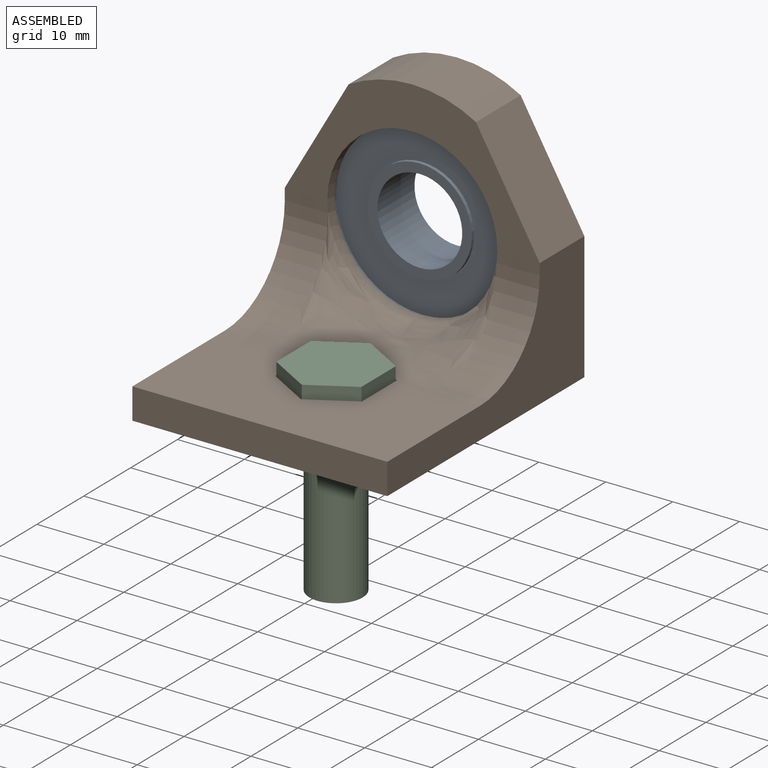
[diagram: assembled view]
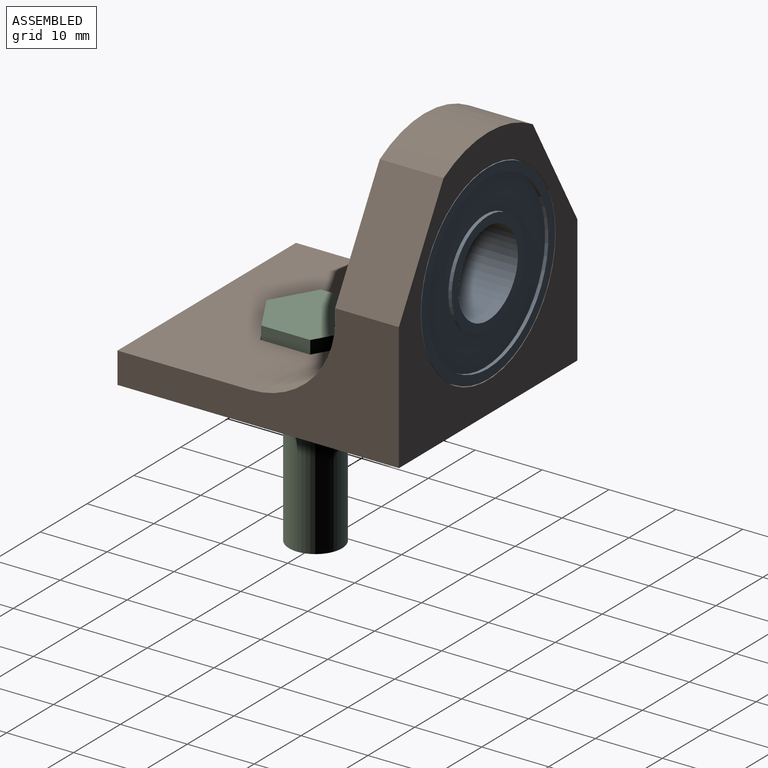
[diagram: assembled view, second angle]
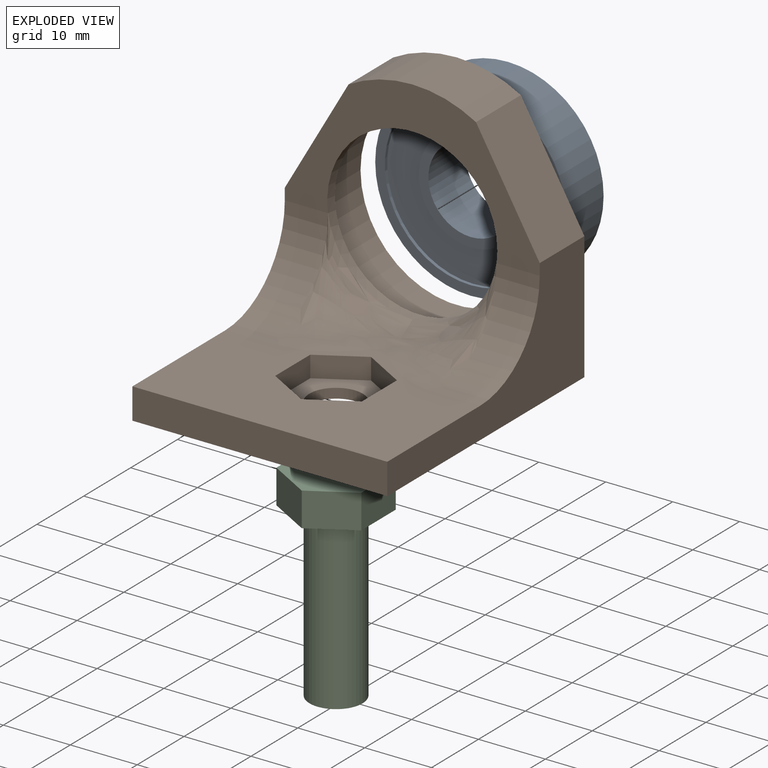
[diagram: exploded view]
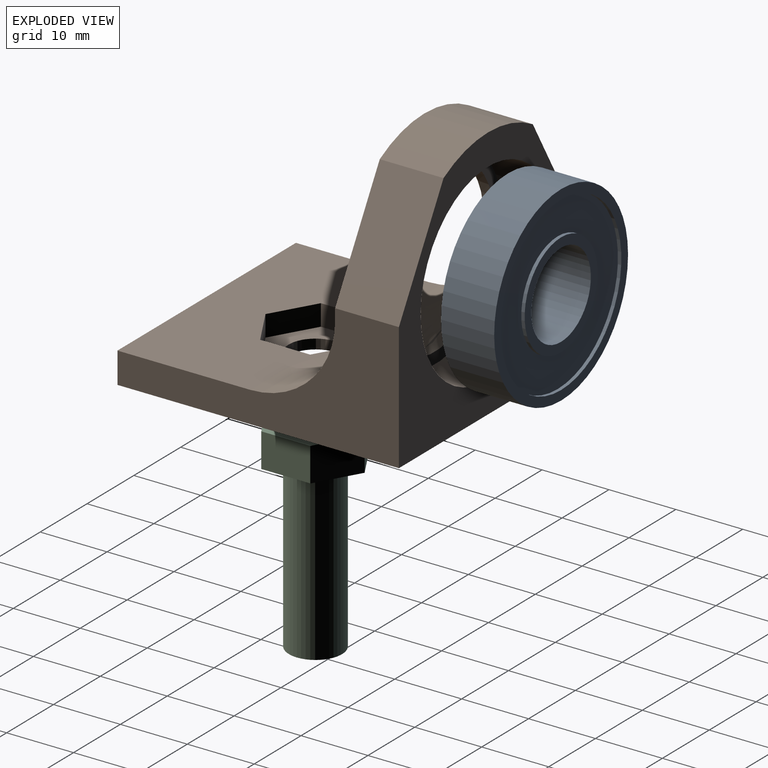
[diagram: exploded view, second angle]
ASSEMBLY  parts=3 mates=2
PART A: 12 faces, bbox 28.6x7.9x28.6 mm
  f0: cylinder r=6.35mm len=12.7mm, axis (0,1,0), area 316.7mm2, adj f1,f11
  f1: plane 15.56x15.56mm, normal (0,-1,0), area 63.4mm2, adj f0,f2
  f2: cylinder r=7.78mm len=15.56mm, axis (0,1,0), area 24.8mm2, adj f1,f3
  f3: plane 25.72x25.72mm, normal (0,-1,0), area 329.4mm2, adj f2,f4
  f4: cylinder r=12.86mm len=25.72mm, axis (0,1,0), area 41mm2, adj f3,f5
  f5: plane 28.58x28.58mm, normal (0,-1,0), area 121.8mm2, adj f4,f6
  f6: cylinder r=14.29mm len=28.58mm, axis (0,1,0), area 712.6mm2, adj f5,f7
  f7: plane 28.58x28.58mm, normal (0,1,0), area 121.8mm2, adj f6,f8
  f8: cylinder r=12.86mm len=25.72mm, axis (0,1,0), area 41mm2, adj f7,f9
  f9: plane 25.72x25.72mm, normal (0,1,0), area 329.4mm2, adj f8,f10
  f10: cylinder r=7.78mm len=15.56mm, axis (0,1,0), area 24.8mm2, adj f9,f11
  f11: plane 15.56x15.56mm, normal (0,1,0), area 63.4mm2, adj f0,f10
PART B: 24 faces, bbox 38.1x42.1x38.1 mm
  f0: plane 38.1x26.16mm, normal (0,0,1), area 666.6mm2, adj f1,f3,f11,f12,f13,f14,f15,f16
  f1: plane 42.07x19.05mm, normal (-1,0,0), area 367.1mm2, adj f0,f2,f6,f7,f11,f20,f23
  f2: plane 42.07x38.1mm, normal (0,0,-1), area 1552.5mm2, adj f1,f3,f11,f19,f23
  f3: plane 42.07x19.05mm, normal (1,0,0), area 367.1mm2, adj f0,f2,f4,f7,f11,f22,f23
  f4: plane 16.5x9.54mm, normal (0.87,0,0.5), area 181.7mm2, adj f3,f5,f7,f23
  f5: cylinder r=19.05mm len=19.05mm, axis (0,1,0), area 190.3mm2, adj f4,f6,f7,f23
  f6: plane 16.5x9.54mm, normal (-0.87,0,0.5), area 181.7mm2, adj f1,f5,f7,f23
  f7: plane 38.1x20.76mm, normal (0,-1,0), area 272.9mm2, adj f1,f3,f4,f5,f6,f8,f20,f22
  f8: cylinder r=12.7mm len=25.4mm, axis (0,1,0), area 127.7mm2, adj f7,f10,f21
  f9: cylinder r=14.41mm len=28.83mm, axis (0,1,0), area 718.9mm2, adj f10,f23
  f10: plane 28.83x28.83mm, normal (0,1,0), area 146mm2, adj f8,f9
  f11: plane 38.1x4.64mm, normal (0,-1,0), area 176.6mm2, adj f0,f1,f2,f3
  f12: plane 6.48x3.74mm, normal (-0.5,-0.87,0), area 23.7mm2, adj f0,f13,f17,f18
  f13: plane 6.48x3.74mm, normal (0.5,-0.87,0), area 23.7mm2, adj f0,f12,f14,f18
  f14: plane 7.48x3.18mm, normal (1,0,0), area 23.7mm2, adj f0,f13,f15,f18
  f15: plane 6.48x3.74mm, normal (0.5,0.87,0), area 23.7mm2, adj f0,f14,f16,f18
  f16: plane 6.48x3.74mm, normal (-0.5,0.87,0), area 23.7mm2, adj f0,f15,f17,f18
  f17: plane 7.48x3.18mm, normal (-1,0,0), area 23.7mm2, adj f0,f12,f16,f18
  f18: plane 14.96x12.95mm, normal (0,0,1), area 95mm2, adj f12,f13,f14,f15,f16,f17,f19
  f19: cylinder r=4mm len=8mm, axis (0,0,1), area 36.7mm2, adj f2,f18
  f20: cylinder r=12.7mm len=12.7mm, axis (1,0,0), area 129mm2, adj f0,f1,f7,f21
  f21: bspline ~27.04x12.88mm, area 308.2mm2, adj f0,f8,f20,f22
  f22: cylinder r=12.7mm len=12.7mm, axis (1,0,0), area 129mm2, adj f0,f3,f7,f21
  f23: plane 38.1x38.1mm, normal (0,1,0), area 577.3mm2, adj f1,f2,f3,f4,f5,f6,f9
PART C: 10 faces, bbox 12.7x14.7x30.5 mm
  f0: plane 7.33x5.08mm, normal (1,0,0), area 37.2mm2, adj f1,f5,f6,f7
  f1: plane 6.35x5.08mm, normal (0.5,0.87,0), area 37.2mm2, adj f0,f2,f6,f7
  f2: plane 6.35x5.08mm, normal (-0.5,0.87,0), area 37.2mm2, adj f1,f3,f6,f7
  f3: plane 7.33x5.08mm, normal (-1,0,0), area 37.2mm2, adj f2,f4,f6,f7
  f4: plane 6.35x5.08mm, normal (-0.5,-0.87,0), area 37.2mm2, adj f3,f5,f6,f7
  f5: plane 6.35x5.08mm, normal (0.5,-0.87,0), area 37.2mm2, adj f0,f4,f6,f7
  f6: plane 14.66x12.7mm, normal (0,0,1), area 90.2mm2, adj f0,f1,f2,f3,f4,f5,f8
  f7: plane 14.66x12.7mm, normal (0,0,-1), area 139.7mm2, adj f0,f1,f2,f3,f4,f5
  f8: cylinder r=3.97mm len=25.4mm, axis (0,0,-1), area 633.4mm2, adj f6,f9
  f9: plane 7.94x7.94mm, normal (0,0,1), area 49.5mm2, adj f8
PLACE A t=(0,0,3.99)mm
PLACE B at identity fixed
PLACE C rot(axis=(1,0,0),180deg) t=(0,-21.83,-8.52)mm
MATE fastened A.f0 <-> B.f5  axis (0,-1,0) through (0,-3.97,3.99)mm
MATE fastened C.f8 <-> B.f19  axis (0,0,1) through (0,-21.83,-13.6)mm
